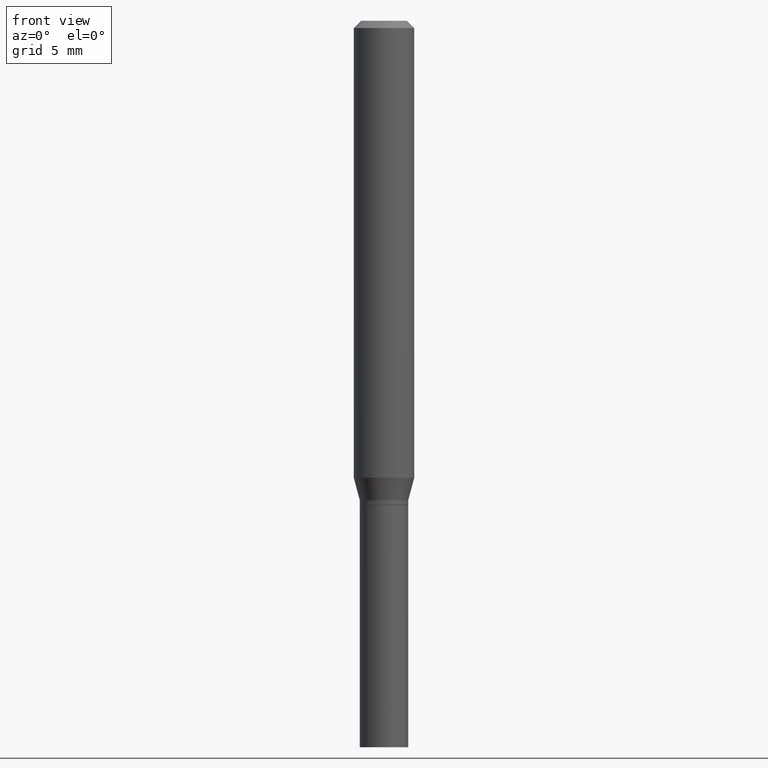
[diagram: clean part render]
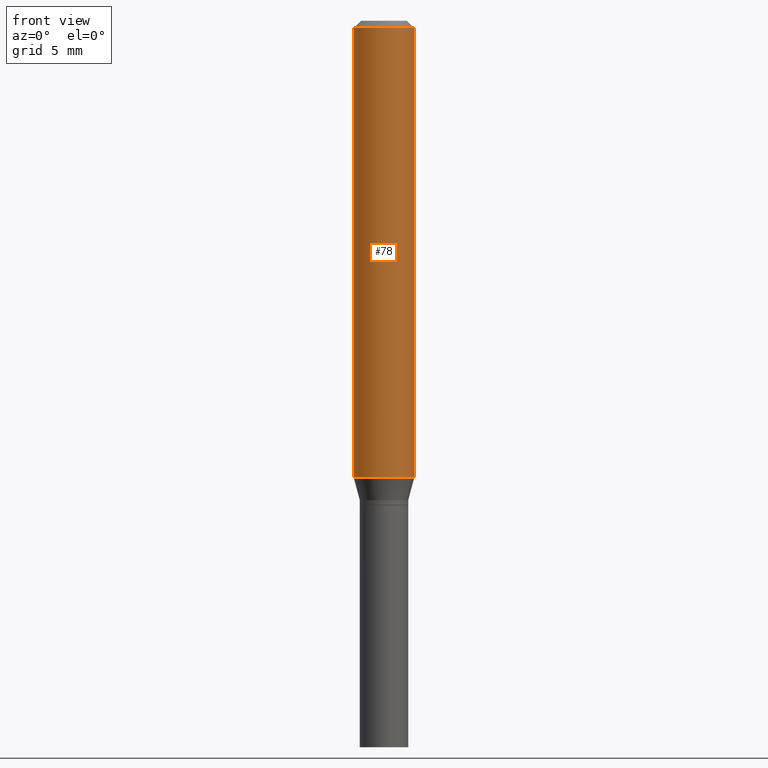
[diagram: same view with one face highlighted and labeled with its STEP entity id]
A machine part, front view. The second image highlights one B-rep face of the part: STEP entity #78.
In plain terms, the highlighted cylindrical surface (edge-blend (fillet) strip) has radius 1.5875 mm, axis along (-0, 0, 1).
Its self-contained STEP definition (entity closure, byte-faithful):
#15 = CARTESIAN_POINT ( 'NONE',  ( 0.06250000000000000000, -4.888073874380388472E-16, -0.01499999999999999944 ) ) ;
#39 = CIRCLE ( 'NONE', #358, 0.06250000000000000000 ) ;
#51 = CARTESIAN_POINT ( 'NONE',  ( 3.668203209277705088E-31, -5.237222008264718399E-17, -0.01499999999999999944 ) ) ;
#61 = VERTEX_POINT ( 'NONE', #231 ) ;
#70 = VERTEX_POINT ( 'NONE', #191 ) ;
#71 = EDGE_CURVE ( 'NONE', #61, #70, #330, .T. ) ;
#78 = ADVANCED_FACE ( 'NONE', ( #302 ), #153, .T. ) ;
#81 = CARTESIAN_POINT ( 'NONE',  ( 2.306931445210689436E-29, -3.293686703576700358E-15, -0.9433493649053894536 ) ) ;
#83 = DIRECTION ( 'NONE',  ( -2.445468806185136597E-29, 3.491481338843145583E-15, 1.000000000000000000 ) ) ;
#95 = CIRCLE ( 'NONE', #409, 0.06250000000000000000 ) ;
#107 = CARTESIAN_POINT ( 'NONE',  ( -0.06250000000000000000, 4.440892098500626162E-16, -3.074334431409316114E-30 ) ) ;
#151 = DIRECTION ( 'NONE',  ( -2.445468806185136877E-29, 3.491481338843145188E-15, 1.000000000000000000 ) ) ;
#153 = CYLINDRICAL_SURFACE ( 'NONE', #450, 0.06250000000000000000 ) ;
#159 = EDGE_CURVE ( 'NONE', #70, #426, #95, .T. ) ;
#166 = ORIENTED_EDGE ( 'NONE', *, *, #360, .T. ) ;
#191 = CARTESIAN_POINT ( 'NONE',  ( -0.06250000000000000000, -1.228940251979611102E-15, -0.01499999999999999944 ) ) ;
#192 = EDGE_CURVE ( 'NONE', #61, #201, #39, .T. ) ;
#201 = VERTEX_POINT ( 'NONE', #405 ) ;
#221 = ORIENTED_EDGE ( 'NONE', *, *, #71, .F. ) ;
#231 = CARTESIAN_POINT ( 'NONE',  ( -0.06250000000000000000, -2.849597493726637742E-15, -0.9433493649053894536 ) ) ;
#266 = ORIENTED_EDGE ( 'NONE', *, *, #192, .T. ) ;
#296 = ORIENTED_EDGE ( 'NONE', *, *, #159, .F. ) ;
#302 = FACE_OUTER_BOUND ( 'NONE', #352, .T. ) ;
#304 = DIRECTION ( 'NONE',  ( 1.000000000000000000, -6.982962677686266711E-15, 4.876176775795935793E-29 ) ) ;
#309 = DIRECTION ( 'NONE',  ( -2.445468806185136877E-29, 3.491481338843145188E-15, 1.000000000000000000 ) ) ;
#311 = VECTOR ( 'NONE', #309, 39.37007874015748143 ) ;
#312 = DIRECTION ( 'NONE',  ( -2.445468806185136597E-29, 3.491481338843145583E-15, 1.000000000000000000 ) ) ;
#330 = LINE ( 'NONE', #107, #458 ) ;
#342 = DIRECTION ( 'NONE',  ( 1.000000000000000000, -6.982962677686262766E-15, 0.000000000000000000 ) ) ;
#352 = EDGE_LOOP ( 'NONE', ( #221, #266, #166, #296 ) ) ;
#358 = AXIS2_PLACEMENT_3D ( 'NONE', #81, #312, #342 ) ;
#360 = EDGE_CURVE ( 'NONE', #201, #426, #438, .T. ) ;
#362 = CARTESIAN_POINT ( 'NONE',  ( 0.06250000000000000000, -4.364351673553916694E-16, 3.047610484872459871E-30 ) ) ;
#398 = CARTESIAN_POINT ( 'NONE',  ( 0.000000000000000000, 0.000000000000000000, 0.000000000000000000 ) ) ;
#405 = CARTESIAN_POINT ( 'NONE',  ( 0.06250000000000000000, -3.730121870932091633E-15, -0.9433493649053894536 ) ) ;
#409 = AXIS2_PLACEMENT_3D ( 'NONE', #51, #83, #447 ) ;
#426 = VERTEX_POINT ( 'NONE', #15 ) ;
#433 = DIRECTION ( 'NONE',  ( -2.445468806185136597E-29, 3.491481338843145583E-15, 1.000000000000000000 ) ) ;
#438 = LINE ( 'NONE', #362, #311 ) ;
#447 = DIRECTION ( 'NONE',  ( 1.000000000000000000, -6.982962677686266711E-15, 0.000000000000000000 ) ) ;
#450 = AXIS2_PLACEMENT_3D ( 'NONE', #398, #433, #304 ) ;
#458 = VECTOR ( 'NONE', #151, 39.37007874015748143 ) ;